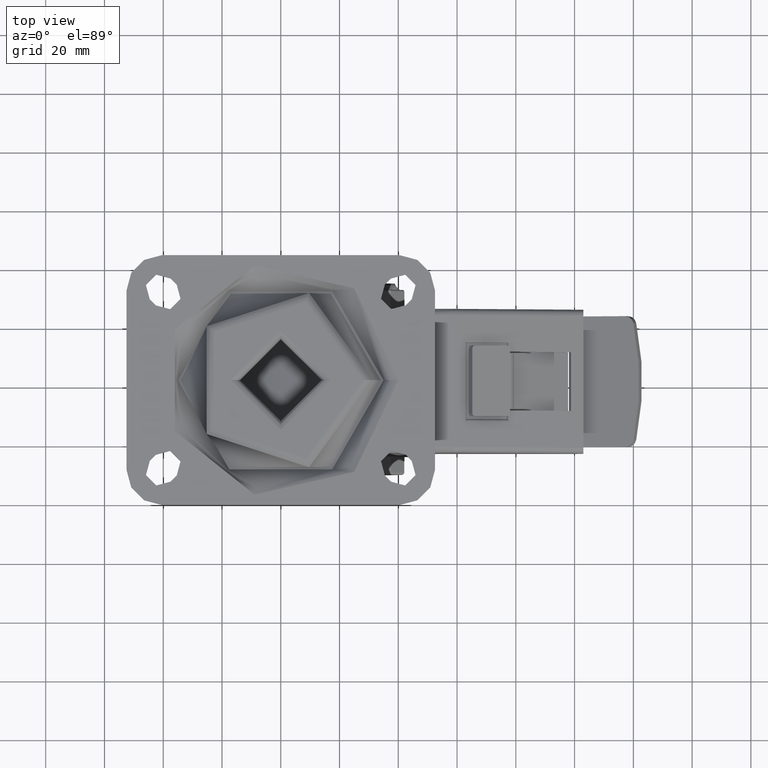
[diagram: clean part render]
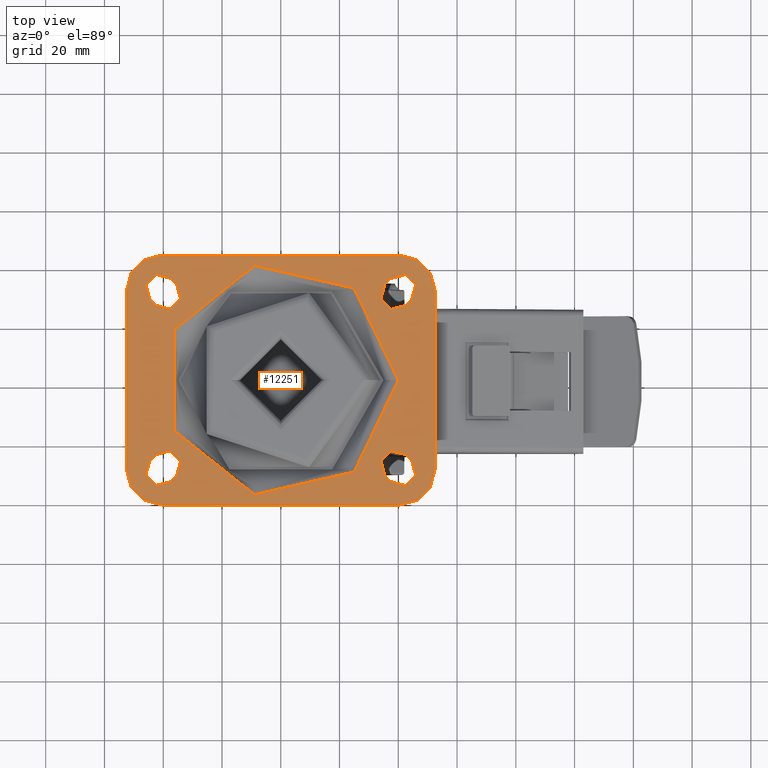
[diagram: same view with one face highlighted and labeled with its STEP entity id]
A machine part, top view. The second image highlights one B-rep face of the part: STEP entity #12251.
In plain terms, the highlighted planar face has unit normal (0, 0, 1).
Its self-contained STEP definition (entity closure, byte-faithful):
#534=FACE_BOUND('',#1863,.T.);
#535=FACE_BOUND('',#1864,.T.);
#536=FACE_BOUND('',#1865,.T.);
#537=FACE_BOUND('',#1866,.T.);
#538=FACE_BOUND('',#1867,.T.);
#695=PLANE('',#13279);
#1160=FACE_OUTER_BOUND('',#1862,.T.);
#1862=EDGE_LOOP('',(#9178,#9179,#9180,#9181,#9182,#9183,#9184,#9185));
#1863=EDGE_LOOP('',(#9186));
#1864=EDGE_LOOP('',(#9187,#9188,#9189,#9190));
#1865=EDGE_LOOP('',(#9191,#9192,#9193,#9194));
#1866=EDGE_LOOP('',(#9195,#9196,#9197,#9198));
#1867=EDGE_LOOP('',(#9199,#9200,#9201,#9202));
#2826=LINE('',#18664,#3979);
#2827=LINE('',#18665,#3980);
#2828=LINE('',#18666,#3981);
#2829=LINE('',#18667,#3982);
#2830=LINE('',#18668,#3983);
#2831=LINE('',#18669,#3984);
#2832=LINE('',#18670,#3985);
#2833=LINE('',#18671,#3986);
#2834=LINE('',#18672,#3987);
#2835=LINE('',#18673,#3988);
#2836=LINE('',#18674,#3989);
#2837=LINE('',#18675,#3990);
#3979=VECTOR('',#15134,1000.);
#3980=VECTOR('',#15135,1000.);
#3981=VECTOR('',#15136,1000.);
#3982=VECTOR('',#15137,1000.);
#3983=VECTOR('',#15138,999.999999999999);
#3984=VECTOR('',#15139,1000.);
#3985=VECTOR('',#15140,1000.);
#3986=VECTOR('',#15141,999.999999999999);
#3987=VECTOR('',#15142,1000.);
#3988=VECTOR('',#15143,999.999999999999);
#3989=VECTOR('',#15144,999.999999999999);
#3990=VECTOR('',#15145,1000.);
#4755=CIRCLE('',#12975,4.99999999999999);
#4758=CIRCLE('',#12979,5.);
#4759=CIRCLE('',#12981,4.99999999999999);
#4762=CIRCLE('',#12985,5.);
#4763=CIRCLE('',#12987,4.99999999999999);
#4766=CIRCLE('',#12991,5.);
#4767=CIRCLE('',#12993,4.99999999999999);
#4770=CIRCLE('',#12997,5.);
#4772=CIRCLE('',#13000,12.);
#4774=CIRCLE('',#13003,12.);
#4776=CIRCLE('',#13006,12.);
#4778=CIRCLE('',#13009,12.);
#4787=CIRCLE('',#13023,40.);
#5202=VERTEX_POINT('',#17632);
#5203=VERTEX_POINT('',#17633);
#5208=VERTEX_POINT('',#17644);
#5209=VERTEX_POINT('',#17646);
#5210=VERTEX_POINT('',#17650);
#5211=VERTEX_POINT('',#17651);
#5216=VERTEX_POINT('',#17662);
#5217=VERTEX_POINT('',#17664);
#5218=VERTEX_POINT('',#17668);
#5219=VERTEX_POINT('',#17669);
#5224=VERTEX_POINT('',#17680);
#5225=VERTEX_POINT('',#17682);
#5226=VERTEX_POINT('',#17686);
#5227=VERTEX_POINT('',#17687);
#5232=VERTEX_POINT('',#17698);
#5233=VERTEX_POINT('',#17700);
#5236=VERTEX_POINT('',#17707);
#5237=VERTEX_POINT('',#17709);
#5240=VERTEX_POINT('',#17716);
#5241=VERTEX_POINT('',#17718);
#5244=VERTEX_POINT('',#17725);
#5245=VERTEX_POINT('',#17727);
#5248=VERTEX_POINT('',#17734);
#5249=VERTEX_POINT('',#17736);
#5256=VERTEX_POINT('',#17760);
#6377=EDGE_CURVE('',#5202,#5203,#4755,.T.);
#6383=EDGE_CURVE('',#5208,#5209,#4758,.T.);
#6385=EDGE_CURVE('',#5210,#5211,#4759,.T.);
#6391=EDGE_CURVE('',#5216,#5217,#4762,.T.);
#6393=EDGE_CURVE('',#5218,#5219,#4763,.T.);
#6399=EDGE_CURVE('',#5224,#5225,#4766,.T.);
#6401=EDGE_CURVE('',#5226,#5227,#4767,.T.);
#6407=EDGE_CURVE('',#5232,#5233,#4770,.T.);
#6411=EDGE_CURVE('',#5236,#5237,#4772,.T.);
#6415=EDGE_CURVE('',#5240,#5241,#4774,.T.);
#6419=EDGE_CURVE('',#5244,#5245,#4776,.T.);
#6423=EDGE_CURVE('',#5248,#5249,#4778,.T.);
#6435=EDGE_CURVE('',#5256,#5256,#4787,.T.);
#6891=EDGE_CURVE('',#5245,#5248,#2826,.T.);
#6892=EDGE_CURVE('',#5241,#5244,#2827,.T.);
#6893=EDGE_CURVE('',#5237,#5240,#2828,.T.);
#6894=EDGE_CURVE('',#5249,#5236,#2829,.T.);
#6895=EDGE_CURVE('',#5227,#5232,#2830,.T.);
#6896=EDGE_CURVE('',#5233,#5226,#2831,.T.);
#6897=EDGE_CURVE('',#5219,#5224,#2832,.T.);
#6898=EDGE_CURVE('',#5225,#5218,#2833,.T.);
#6899=EDGE_CURVE('',#5211,#5216,#2834,.T.);
#6900=EDGE_CURVE('',#5217,#5210,#2835,.T.);
#6901=EDGE_CURVE('',#5203,#5208,#2836,.T.);
#6902=EDGE_CURVE('',#5209,#5202,#2837,.T.);
#9178=ORIENTED_EDGE('',*,*,#6423,.F.);
#9179=ORIENTED_EDGE('',*,*,#6891,.F.);
#9180=ORIENTED_EDGE('',*,*,#6419,.F.);
#9181=ORIENTED_EDGE('',*,*,#6892,.F.);
#9182=ORIENTED_EDGE('',*,*,#6415,.F.);
#9183=ORIENTED_EDGE('',*,*,#6893,.F.);
#9184=ORIENTED_EDGE('',*,*,#6411,.F.);
#9185=ORIENTED_EDGE('',*,*,#6894,.F.);
#9186=ORIENTED_EDGE('',*,*,#6435,.F.);
#9187=ORIENTED_EDGE('',*,*,#6407,.F.);
#9188=ORIENTED_EDGE('',*,*,#6895,.F.);
#9189=ORIENTED_EDGE('',*,*,#6401,.F.);
#9190=ORIENTED_EDGE('',*,*,#6896,.F.);
#9191=ORIENTED_EDGE('',*,*,#6399,.F.);
#9192=ORIENTED_EDGE('',*,*,#6897,.F.);
#9193=ORIENTED_EDGE('',*,*,#6393,.F.);
#9194=ORIENTED_EDGE('',*,*,#6898,.F.);
#9195=ORIENTED_EDGE('',*,*,#6391,.F.);
#9196=ORIENTED_EDGE('',*,*,#6899,.F.);
#9197=ORIENTED_EDGE('',*,*,#6385,.F.);
#9198=ORIENTED_EDGE('',*,*,#6900,.F.);
#9199=ORIENTED_EDGE('',*,*,#6383,.F.);
#9200=ORIENTED_EDGE('',*,*,#6901,.F.);
#9201=ORIENTED_EDGE('',*,*,#6377,.F.);
#9202=ORIENTED_EDGE('',*,*,#6902,.F.);
#12251=ADVANCED_FACE('',(#1160,#534,#535,#536,#537,#538),#695,.T.);
#12975=AXIS2_PLACEMENT_3D('',#17634,#14147,#14148);
#12979=AXIS2_PLACEMENT_3D('',#17647,#14158,#14159);
#12981=AXIS2_PLACEMENT_3D('',#17652,#14163,#14164);
#12985=AXIS2_PLACEMENT_3D('',#17665,#14174,#14175);
#12987=AXIS2_PLACEMENT_3D('',#17670,#14179,#14180);
#12991=AXIS2_PLACEMENT_3D('',#17683,#14190,#14191);
#12993=AXIS2_PLACEMENT_3D('',#17688,#14195,#14196);
#12997=AXIS2_PLACEMENT_3D('',#17701,#14206,#14207);
#13000=AXIS2_PLACEMENT_3D('',#17710,#14214,#14215);
#13003=AXIS2_PLACEMENT_3D('',#17719,#14222,#14223);
#13006=AXIS2_PLACEMENT_3D('',#17728,#14230,#14231);
#13009=AXIS2_PLACEMENT_3D('',#17737,#14238,#14239);
#13023=AXIS2_PLACEMENT_3D('',#17761,#14269,#14270);
#13279=AXIS2_PLACEMENT_3D('',#18663,#15132,#15133);
#14147=DIRECTION('center_axis',(0.,0.,1.));
#14148=DIRECTION('ref_axis',(-1.,0.,0.));
#14158=DIRECTION('center_axis',(0.,0.,1.));
#14159=DIRECTION('ref_axis',(-1.,0.,0.));
#14163=DIRECTION('center_axis',(0.,0.,1.));
#14164=DIRECTION('ref_axis',(-1.,0.,0.));
#14174=DIRECTION('center_axis',(0.,0.,1.));
#14175=DIRECTION('ref_axis',(-1.,0.,0.));
#14179=DIRECTION('center_axis',(0.,0.,1.));
#14180=DIRECTION('ref_axis',(1.,0.,0.));
#14190=DIRECTION('center_axis',(0.,0.,1.));
#14191=DIRECTION('ref_axis',(1.,0.,0.));
#14195=DIRECTION('center_axis',(0.,0.,1.));
#14196=DIRECTION('ref_axis',(1.,0.,0.));
#14206=DIRECTION('center_axis',(0.,0.,1.));
#14207=DIRECTION('ref_axis',(1.,0.,0.));
#14214=DIRECTION('center_axis',(0.,0.,-1.));
#14215=DIRECTION('ref_axis',(-0.707106781186548,0.707106781186547,0.));
#14222=DIRECTION('center_axis',(0.,0.,-1.));
#14223=DIRECTION('ref_axis',(0.707106781186548,0.707106781186547,0.));
#14230=DIRECTION('center_axis',(0.,0.,-1.));
#14231=DIRECTION('ref_axis',(0.707106781186548,-0.707106781186547,0.));
#14238=DIRECTION('center_axis',(0.,0.,-1.));
#14239=DIRECTION('ref_axis',(-0.707106781186548,-0.707106781186547,0.));
#14269=DIRECTION('center_axis',(0.,0.,1.));
#14270=DIRECTION('ref_axis',(1.,1.22464679914735E-16,0.));
#15132=DIRECTION('center_axis',(0.,0.,1.));
#15133=DIRECTION('ref_axis',(1.,0.,0.));
#15134=DIRECTION('',(-1.,0.,0.));
#15135=DIRECTION('',(0.,-1.,0.));
#15136=DIRECTION('',(1.,0.,0.));
#15137=DIRECTION('',(0.,1.,0.));
#15138=DIRECTION('',(0.707106781186546,-0.707106781186549,0.));
#15139=DIRECTION('',(-0.707106781186548,0.707106781186548,0.));
#15140=DIRECTION('',(0.707106781186548,0.707106781186548,0.));
#15141=DIRECTION('',(-0.707106781186546,-0.707106781186549,0.));
#15142=DIRECTION('',(-0.707106781186548,-0.707106781186548,0.));
#15143=DIRECTION('',(0.707106781186546,0.707106781186549,0.));
#15144=DIRECTION('',(-0.707106781186546,0.707106781186549,0.));
#15145=DIRECTION('',(0.707106781186548,-0.707106781186548,0.));
#17632=CARTESIAN_POINT('',(37.5251262658471,-34.5961940777125,2.5));
#17633=CARTESIAN_POINT('',(44.5961940777126,-27.5251262658471,2.5));
#17634=CARTESIAN_POINT('Origin',(41.0606601717798,-31.0606601717798,2.5));
#17644=CARTESIAN_POINT('',(42.4748737341529,-25.4038059222874,2.5));
#17646=CARTESIAN_POINT('',(35.4038059222874,-32.4748737341529,2.5));
#17647=CARTESIAN_POINT('Origin',(38.9393398282202,-28.9393398282202,2.5));
#17650=CARTESIAN_POINT('',(44.5961940777126,27.5251262658471,2.5));
#17651=CARTESIAN_POINT('',(37.5251262658471,34.5961940777125,2.5));
#17652=CARTESIAN_POINT('Origin',(41.0606601717798,31.0606601717798,2.5));
#17662=CARTESIAN_POINT('',(35.4038059222874,32.4748737341529,2.5));
#17664=CARTESIAN_POINT('',(42.4748737341529,25.4038059222874,2.5));
#17665=CARTESIAN_POINT('Origin',(38.9393398282202,28.9393398282202,2.5));
#17668=CARTESIAN_POINT('',(-44.5961940777126,-27.5251262658471,2.5));
#17669=CARTESIAN_POINT('',(-37.5251262658471,-34.5961940777125,2.5));
#17670=CARTESIAN_POINT('Origin',(-41.0606601717798,-31.0606601717798,2.5));
#17680=CARTESIAN_POINT('',(-35.4038059222874,-32.4748737341529,2.5));
#17682=CARTESIAN_POINT('',(-42.4748737341529,-25.4038059222874,2.5));
#17683=CARTESIAN_POINT('Origin',(-38.9393398282202,-28.9393398282202,2.5));
#17686=CARTESIAN_POINT('',(-37.5251262658471,34.5961940777125,2.5));
#17687=CARTESIAN_POINT('',(-44.5961940777126,27.5251262658471,2.5));
#17688=CARTESIAN_POINT('Origin',(-41.0606601717798,31.0606601717798,2.5));
#17698=CARTESIAN_POINT('',(-42.4748737341529,25.4038059222874,2.5));
#17700=CARTESIAN_POINT('',(-35.4038059222874,32.4748737341529,2.5));
#17701=CARTESIAN_POINT('Origin',(-38.9393398282202,28.9393398282202,2.5));
#17707=CARTESIAN_POINT('',(-52.5,30.5,2.5));
#17709=CARTESIAN_POINT('',(-40.5,42.5,2.5));
#17710=CARTESIAN_POINT('Origin',(-40.5,30.5,2.5));
#17716=CARTESIAN_POINT('',(40.5,42.5,2.5));
#17718=CARTESIAN_POINT('',(52.5,30.5,2.5));
#17719=CARTESIAN_POINT('Origin',(40.5,30.5,2.5));
#17725=CARTESIAN_POINT('',(52.5,-30.5,2.5));
#17727=CARTESIAN_POINT('',(40.5,-42.5,2.5));
#17728=CARTESIAN_POINT('Origin',(40.5,-30.5,2.5));
#17734=CARTESIAN_POINT('',(-40.5,-42.5,2.5));
#17736=CARTESIAN_POINT('',(-52.5,-30.5,2.5));
#17737=CARTESIAN_POINT('Origin',(-40.5,-30.5,2.5));
#17760=CARTESIAN_POINT('',(40.,4.89858719658941E-15,2.5));
#17761=CARTESIAN_POINT('Origin',(1.63670789225912E-16,0.,2.5));
#18663=CARTESIAN_POINT('Origin',(0.,0.,2.5));
#18664=CARTESIAN_POINT('',(52.5,-42.5,2.5));
#18665=CARTESIAN_POINT('',(52.5,42.5,2.5));
#18666=CARTESIAN_POINT('',(-52.5,42.5,2.5));
#18667=CARTESIAN_POINT('',(-52.5,-42.5,2.5));
#18668=CARTESIAN_POINT('',(-44.5961940777126,27.5251262658471,2.5));
#18669=CARTESIAN_POINT('',(-37.5251262658471,34.5961940777125,2.5));
#18670=CARTESIAN_POINT('',(-37.5251262658471,-34.5961940777125,2.5));
#18671=CARTESIAN_POINT('',(-44.5961940777126,-27.5251262658471,2.5));
#18672=CARTESIAN_POINT('',(37.5251262658471,34.5961940777125,2.5));
#18673=CARTESIAN_POINT('',(44.5961940777126,27.5251262658471,2.5));
#18674=CARTESIAN_POINT('',(44.5961940777126,-27.5251262658471,2.5));
#18675=CARTESIAN_POINT('',(37.5251262658471,-34.5961940777125,2.5));